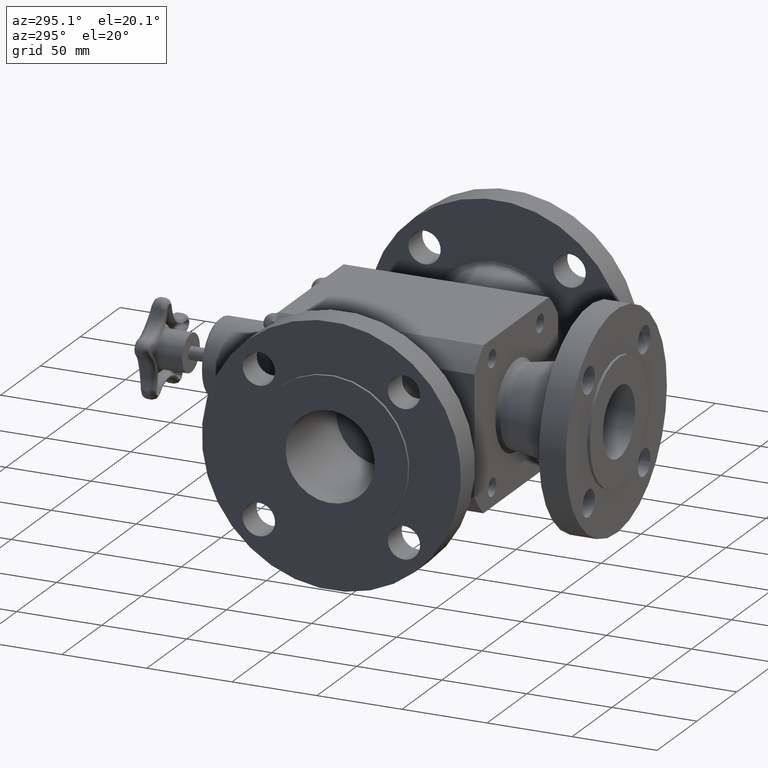
[diagram: clean part render]
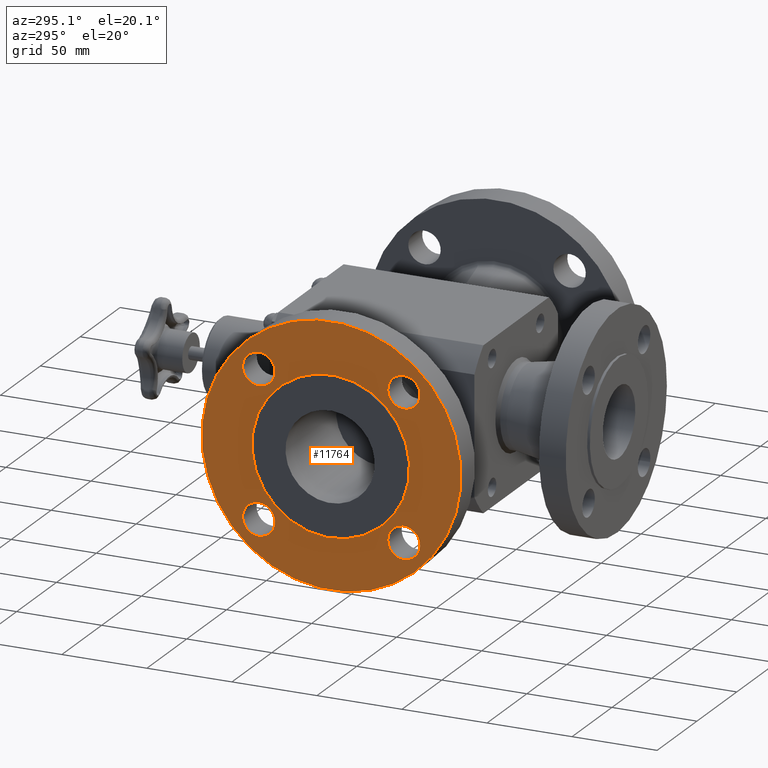
[diagram: same view with one face highlighted and labeled with its STEP entity id]
A machine part, auxiliary view. The second image highlights one B-rep face of the part: STEP entity #11764.
In plain terms, the highlighted planar face has unit normal (-1, 0, 0).
Its self-contained STEP definition (entity closure, byte-faithful):
#11577=CARTESIAN_POINT('',(-4.437500000010004,4.237209716570500,1.784955929504121));
#11578=VERTEX_POINT('',#11577);
#11579=CARTESIAN_POINT('',(-4.437500000010004,3.877378605325118,1.679378605325123));
#11580=DIRECTION('',(-1.000000000000000,9.995965E-017,9.995965E-017));
#11581=DIRECTION('',(1.413643E-016,0.707106781186547,0.707106781186547));
#11582=AXIS2_PLACEMENT_3D('',#11579,#11580,#11581);
#11583=CIRCLE('',#11582,0.375000000002000);
#11584=EDGE_CURVE('',#11578,#11578,#11583,.T.);
#11594=CARTESIAN_POINT('',(-4.437500000010004,1.353381406570841,2.878648889965880));
#11595=VERTEX_POINT('',#11594);
#11596=CARTESIAN_POINT('',(-4.437500000010004,2.197999999999997,1.914817E-015));
#11597=DIRECTION('',(-1.000000000000000,9.995965E-017,9.995965E-017));
#11598=DIRECTION('',(1.413643E-016,0.707106781186547,0.707106781186547));
#11599=AXIS2_PLACEMENT_3D('',#11596,#11597,#11598);
#11600=CIRCLE('',#11599,3.000000000010000);
#11601=EDGE_CURVE('',#11595,#11595,#11600,.T.);
#11705=CARTESIAN_POINT('',(-4.437500000010004,1.688413448628150,1.736784830280829));
#11706=VERTEX_POINT('',#11705);
#11707=CARTESIAN_POINT('',(-4.437500000010004,2.197999999999997,1.914817E-015));
#11708=DIRECTION('',(-1.000000000000000,9.995965E-017,9.995965E-017));
#11709=DIRECTION('',(1.413643E-016,0.707106781186547,0.707106781186547));
#11710=AXIS2_PLACEMENT_3D('',#11707,#11708,#11709);
#11711=CIRCLE('',#11710,1.810000000010000);
#11712=EDGE_CURVE('',#11706,#11706,#11711,.T.);
#11717=CARTESIAN_POINT('',(-4.437500000010004,0.918136726045275,1.279863273954724));
#11718=DIRECTION('',(-1.0,0.0,0.0));
#11719=DIRECTION('',(0.0,-0.707106781186548,-0.707106781186548));
#11720=AXIS2_PLACEMENT_3D('',#11717,#11718,#11719);
#11721=PLANE('',#11720);
#11722=ORIENTED_EDGE('',*,*,#11601,.T.);
#11723=EDGE_LOOP('',(#11722));
#11724=FACE_OUTER_BOUND('',#11723,.T.);
#11725=ORIENTED_EDGE('',*,*,#11584,.F.);
#11726=EDGE_LOOP('',(#11725));
#11727=FACE_BOUND('',#11726,.T.);
#11728=ORIENTED_EDGE('',*,*,#11712,.F.);
#11729=EDGE_LOOP('',(#11728));
#11730=FACE_BOUND('',#11729,.T.);
#11731=CARTESIAN_POINT('',(-4.437500000010005,3.982955929504117,-2.039209716570501));
#11732=VERTEX_POINT('',#11731);
#11733=CARTESIAN_POINT('',(-4.437500000010005,3.877378605325118,-1.679378605325120));
#11734=DIRECTION('',(-1.000000000000000,9.995965E-017,9.995965E-017));
#11735=DIRECTION('',(1.413643E-016,0.707106781186547,0.707106781186547));
#11736=AXIS2_PLACEMENT_3D('',#11733,#11734,#11735);
#11737=CIRCLE('',#11736,0.375000000002000);
#11738=EDGE_CURVE('',#11732,#11732,#11737,.T.);
#11739=ORIENTED_EDGE('',*,*,#11738,.F.);
#11740=EDGE_LOOP('',(#11739));
#11741=FACE_BOUND('',#11740,.T.);
#11742=CARTESIAN_POINT('',(-4.437500000010004,0.158790283429495,-1.784955929504118));
#11743=VERTEX_POINT('',#11742);
#11744=CARTESIAN_POINT('',(-4.437500000010004,0.518621394674876,-1.679378605325120));
#11745=DIRECTION('',(-1.000000000000000,9.995965E-017,9.995965E-017));
#11746=DIRECTION('',(1.413643E-016,0.707106781186548,0.707106781186548));
#11747=AXIS2_PLACEMENT_3D('',#11744,#11745,#11746);
#11748=CIRCLE('',#11747,0.375000000001000);
#11749=EDGE_CURVE('',#11743,#11743,#11748,.T.);
#11750=ORIENTED_EDGE('',*,*,#11749,.F.);
#11751=EDGE_LOOP('',(#11750));
#11752=FACE_BOUND('',#11751,.T.);
#11753=CARTESIAN_POINT('',(-4.437500000010004,0.413044070495878,2.039209716570504));
#11754=VERTEX_POINT('',#11753);
#11755=CARTESIAN_POINT('',(-4.437500000010004,0.518621394674875,1.679378605325123));
#11756=DIRECTION('',(-1.000000000000000,9.995965E-017,9.995965E-017));
#11757=DIRECTION('',(1.413643E-016,0.707106781186547,0.707106781186547));
#11758=AXIS2_PLACEMENT_3D('',#11755,#11756,#11757);
#11759=CIRCLE('',#11758,0.375000000002000);
#11760=EDGE_CURVE('',#11754,#11754,#11759,.T.);
#11761=ORIENTED_EDGE('',*,*,#11760,.F.);
#11762=EDGE_LOOP('',(#11761));
#11763=FACE_BOUND('',#11762,.T.);
#11764=ADVANCED_FACE('',(#11724,#11727,#11730,#11741,#11752,#11763),#11721,.T.);